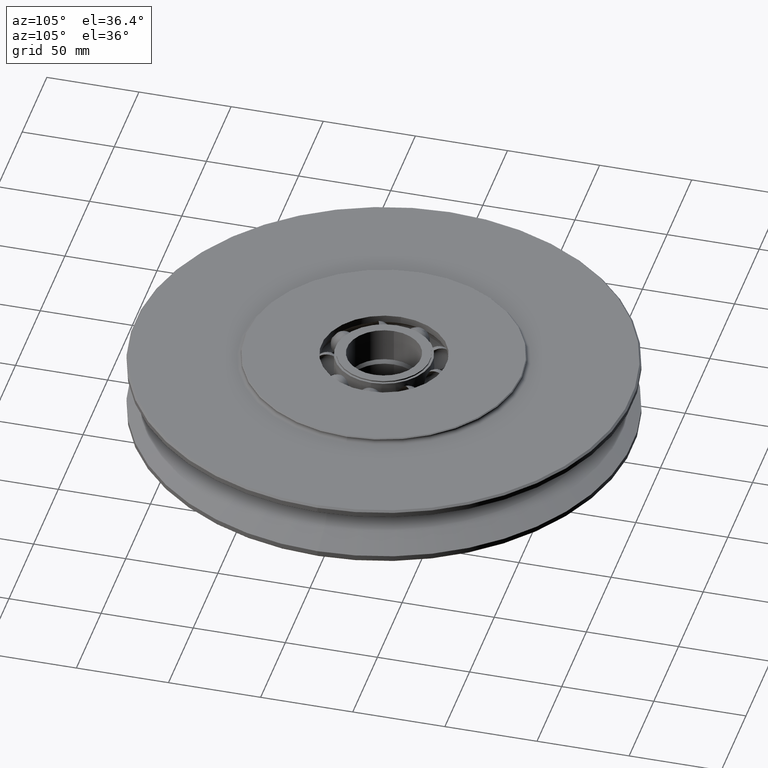
[diagram: clean part render]
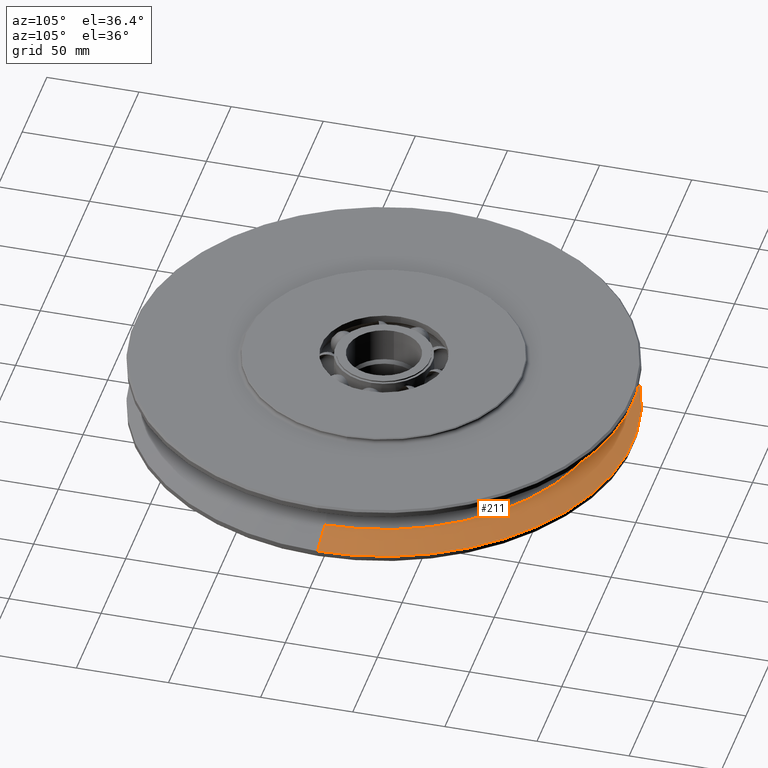
[diagram: same view with one face highlighted and labeled with its STEP entity id]
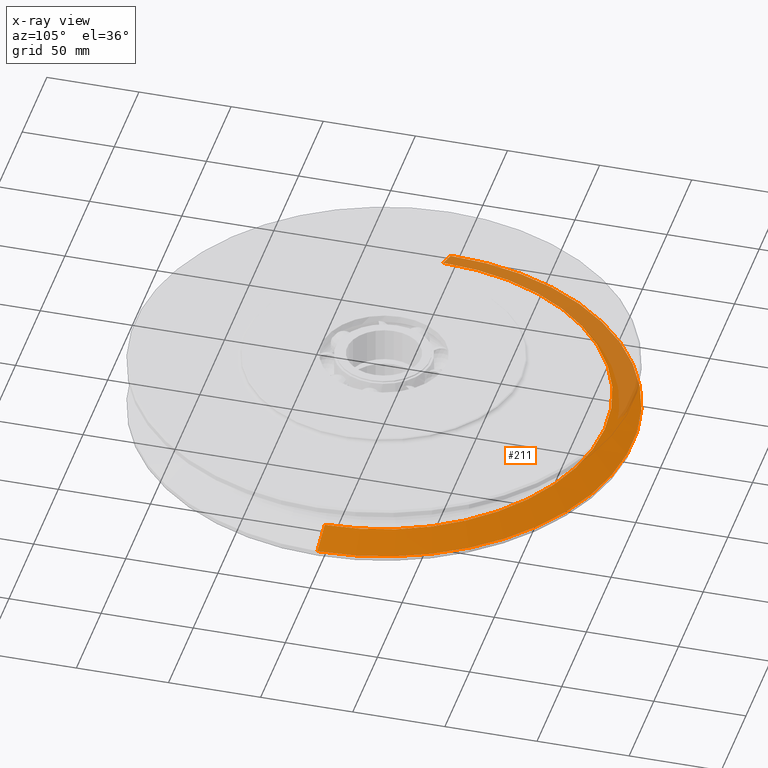
[diagram: x-ray of the same camera — body ghosted, the highlighted face saturated]
A machine part, auxiliary view. The second image highlights one B-rep face of the part: STEP entity #211.
The next image is the same camera in x-ray: the body ghosted, the highlighted face saturated — about 25% of this face is hidden behind the body in this view.
In plain terms, the highlighted conical surface has half-angle 67.5 deg.
Its self-contained STEP definition (entity closure, byte-faithful):
#211=ADVANCED_FACE('',(#529),#530,.T.);
#529=FACE_OUTER_BOUND('',#979,.T.);
#530=CONICAL_SURFACE('',#980,127.410608,1.17809725595661);
#979=EDGE_LOOP('',(#1543,#1544,#1545,#1546));
#980=AXIS2_PLACEMENT_3D('',#1547,#1548,#1549);
#1543=ORIENTED_EDGE('',*,*,#2930,.F.);
#1544=ORIENTED_EDGE('',*,*,#2931,.T.);
#1545=ORIENTED_EDGE('',*,*,#2932,.F.);
#1546=ORIENTED_EDGE('',*,*,#2933,.F.);
#1547=CARTESIAN_POINT('',(0.0,0.0,-9.610786));
#1548=DIRECTION('',(-0.0,-0.0,-1.0));
#1549=DIRECTION('',(1.0,0.0,0.0));
#2930=EDGE_CURVE('',#3609,#3605,#3610,.T.);
#2931=EDGE_CURVE('',#3609,#3611,#3612,.T.);
#2932=EDGE_CURVE('',#3603,#3611,#3613,.T.);
#2933=EDGE_CURVE('',#3605,#3603,#3614,.T.);
#3603=VERTEX_POINT('',#6022);
#3605=VERTEX_POINT('',#6024);
#3609=VERTEX_POINT('',#6028);
#3610=LINE('',#6029,#6030);
#3611=VERTEX_POINT('',#6031);
#3612=CIRCLE('',#6032,135.0);
#3613=LINE('',#6033,#6034);
#3614=CIRCLE('',#6035,119.821216);
#6022=CARTESIAN_POINT('',(-119.821216,1.46738668644344E-014,-6.467157));
#6024=CARTESIAN_POINT('',(119.821216,0.0,-6.467157));
#6028=CARTESIAN_POINT('',(135.0,0.0,-12.754415));
#6029=CARTESIAN_POINT('',(127.410608,-1.56032993264618E-014,-9.610786));
#6030=VECTOR('',#10588,1.0);
#6031=CARTESIAN_POINT('',(-135.0,1.65327317884893E-014,-12.754415));
#6032=AXIS2_PLACEMENT_3D('',#10589,#10590,#10591);
#6033=CARTESIAN_POINT('',(-127.410608,1.56032993264618E-014,-9.610786));
#6034=VECTOR('',#10592,1.0);
#6035=AXIS2_PLACEMENT_3D('',#10593,#10594,#10595);
#10588=DIRECTION('',(-0.923879536667397,1.13142611737747E-016,0.382683422331353));
#10589=CARTESIAN_POINT('',(0.0,0.0,-12.754415));
#10590=DIRECTION('',(0.0,0.0,1.0));
#10591=DIRECTION('',(1.0,0.0,0.0));
#10592=DIRECTION('',(-0.923879536667397,1.13142611737747E-016,-0.382683422331353));
#10593=CARTESIAN_POINT('',(0.0,0.0,-6.467157));
#10594=DIRECTION('',(0.0,0.0,1.0));
#10595=DIRECTION('',(1.0,0.0,0.0));